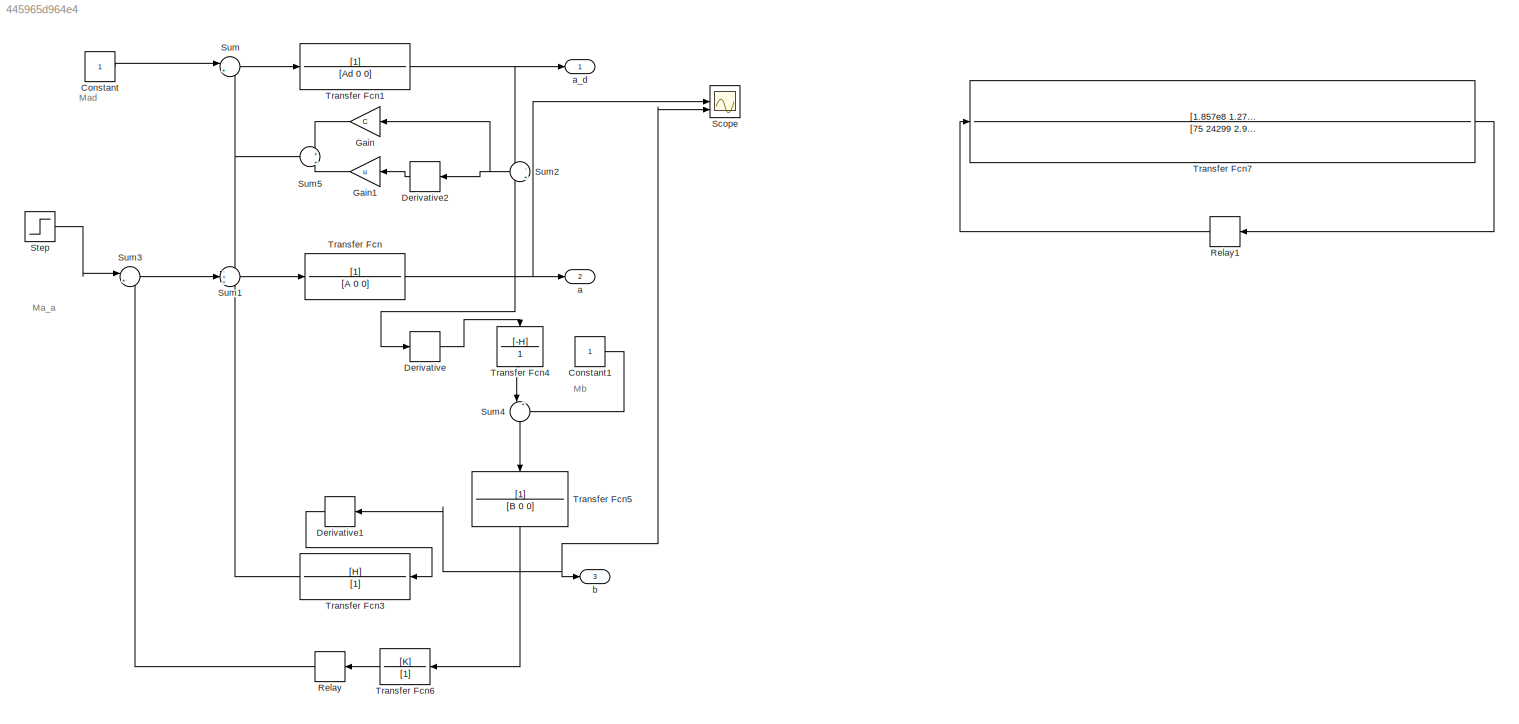
MODEL slx_445965d964e4
KIND model
CONFIG AbsTol = auto
CONFIG EnableMultiTasking = off
CONFIG FixedStep = auto
CONFIG MaxStep = auto
CONFIG MinStep = auto
CONFIG RelTol = 1e-3
CONFIG SampleTimeConstraint = Unconstrained
CONFIG Solver = VariableStepAuto
CONFIG SolverName = VariableStepAuto
CONFIG StartTime = 0.0
CONFIG StopTime = 10.0
WORKSPACE source: mxarray member
WORKSPACE A = 50
WORKSPACE Ad = 10
WORKSPACE B = 10
WORKSPACE C = 1389000
WORKSPACE H = 10000
WORKSPACE K = 2063000
WORKSPACE u = 1861.01
BLOCK [Constant] Constant
BLOCK [Constant] Constant1
BLOCK [Derivative] Derivative
BLOCK [Derivative] Derivative1
BLOCK [Derivative] Derivative2
BLOCK [Gain] Gain
  Gain = C
BLOCK [Gain] Gain1
  Gain = u
BLOCK [Relay] Relay
  OffSwitchValue = 0
  OnOutputValue = 10
  OnSwitchValue = 0
BLOCK [Relay] Relay1
  OffSwitchValue = 0
  OnSwitchValue = 0
BLOCK [Scope] Scope
  Floating = off
  NumInputPorts = 3
  Ports = [3]
  ScopeSpecificationString = Simulink.scopes.TimeScopeBlockCfg('CurrentConfiguration', extmgr.ConfigurationSet(extmgr.Configuration('Core','General UI',true),extmgr.Configuration('Core','Source UI',true),extmgr.Configuration('Sources','WiredSimulink',true),extmgr.Configuration('Visuals','Time Domain',true,'SerializedDisplays',{struct('MinYLimReal','-0.00227','MaxYLimReal','0.00136','YLabelReal','','MinYLimMag','0.00000','MaxY...<+1360ch>
BLOCK [Step] Step
  SampleTime = 0
BLOCK [Sum] Sum
  Inputs = |++
  Ports = [2, 1]
BLOCK [Sum] Sum1
  Inputs = -++
  Ports = [3, 1]
BLOCK [Sum] Sum2
  Inputs = -|+
  Ports = [2, 1]
BLOCK [Sum] Sum3
  Inputs = |++
  Ports = [2, 1]
BLOCK [Sum] Sum4
  Inputs = |++
  NameLocation = right
  Ports = [2, 1]
BLOCK [Sum] Sum5
  Inputs = +|+
  Ports = [2, 1]
BLOCK [TransferFcn] Transfer Fcn
  Denominator = [A 0 0]
BLOCK [TransferFcn] Transfer Fcn1
  Denominator = [Ad 0 0]
BLOCK [TransferFcn] Transfer Fcn3
  Denominator = [1]
  Numerator = [H]
BLOCK [TransferFcn] Transfer Fcn4
  Denominator = 1
  NameLocation = right
  Numerator = [-H]
BLOCK [TransferFcn] Transfer Fcn5
  Denominator = [B 0 0]
  NameLocation = right
BLOCK [TransferFcn] Transfer Fcn6
  Denominator = [1]
  Numerator = [K]
BLOCK [TransferFcn] Transfer Fcn7
  Denominator = [75 24299 2.919e07 5.561e09 2.366e12 2.099e14 1.389e14 1]
  Numerator = [1.857e8 1.278e11 4.335e13 1.299e16 2.866e16]
BLOCK [Outport] a
  Port = 2
  SignalName = \alpha
BLOCK [Outport] a_d
  SignalName = \alpha_d
BLOCK [Outport] b
  Port = 3
  SignalName = \\beta
ANNOTATION (root): Ma_a
ANNOTATION (root): Mad
ANNOTATION (root): Mb
LINE Constant1:1 -> Sum4:2
LINE Constant:1 -> Sum:1
LINE Derivative1:1 -> Transfer Fcn3:1
LINE Derivative2:1 -> Gain1:1
LINE Derivative:1 -> Transfer Fcn4:1
LINE Gain1:1 -> Sum5:2
LINE Gain:1 -> Sum5:1
LINE Relay1:1 -> Transfer Fcn7:1
LINE Relay:1 -> Sum3:2
LINE Step:1 -> Sum3:1
LINE Sum1:1 -> Transfer Fcn:1
NET Sum2:1 -> Derivative2:1, Gain:1
LINE Sum3:1 -> Sum1:2
LINE Sum4:1 -> Transfer Fcn5:1
NET Sum5:1 -> Sum1:1, Sum:2
LINE Sum:1 -> Transfer Fcn1:1
NET Transfer Fcn1:1 -> Sum2:1, a_d:1
LINE Transfer Fcn3:1 -> Sum1:3
LINE Transfer Fcn4:1 -> Sum4:1
NET Transfer Fcn5:1 -> Derivative1:1, Scope:3, Transfer Fcn6:1, b:1
LINE Transfer Fcn6:1 -> Relay:1
LINE Transfer Fcn7:1 -> Relay1:1
NET Transfer Fcn:1 -> Derivative:1, Scope:2, Sum2:2, a:1
note: NET lines group one-source signal fan-out (src -> all destinations, sorted); 1:1 wires keep LINE
